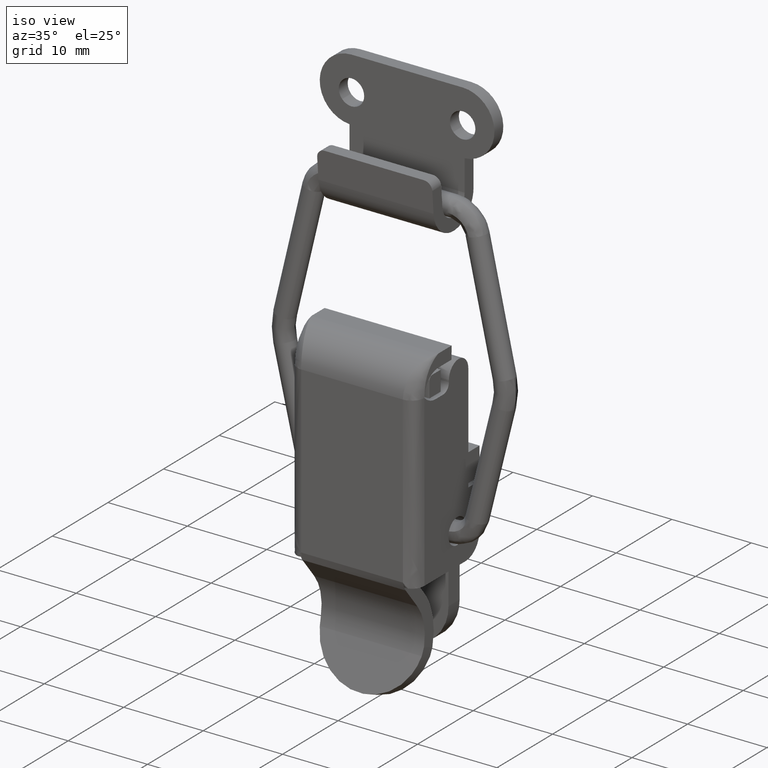
[diagram: clean part render]
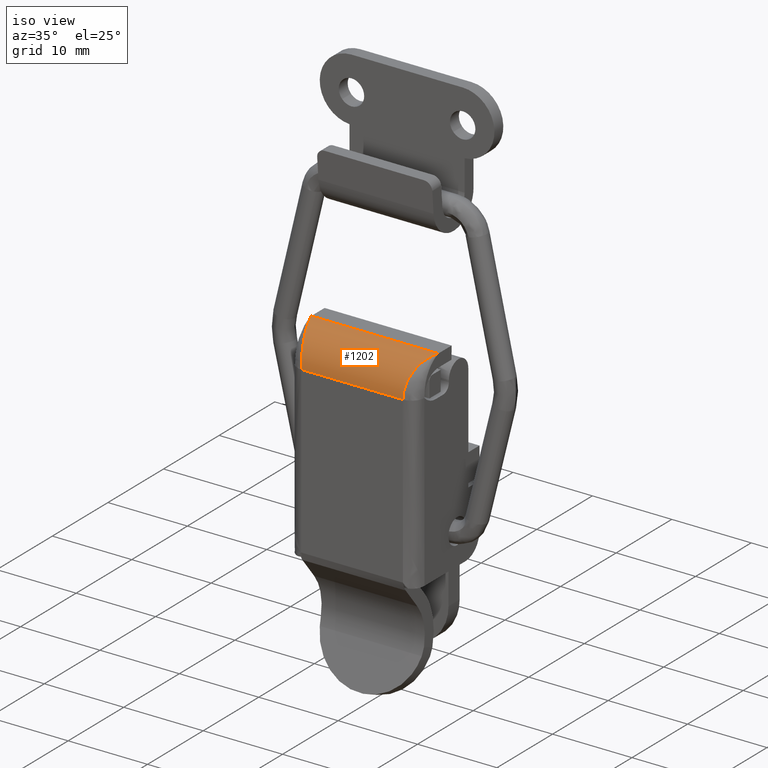
[diagram: same view with one face highlighted and labeled with its STEP entity id]
A machine part, iso view. The second image highlights one B-rep face of the part: STEP entity #1202.
In plain terms, the highlighted face is a freeform B-spline surface patch.
Its self-contained STEP definition (entity closure, byte-faithful):
#667=CARTESIAN_POINT('',(7.999999999995459,-3.400000000000000,21.500000000000000));
#668=VERTEX_POINT('',#667);
#681=CARTESIAN_POINT('',(6.399999999995410,-7.500000000000090,17.399999999999999));
#682=VERTEX_POINT('',#681);
#683=CARTESIAN_POINT('',(6.399999999995410,-7.500000000000090,17.399999999999999));
#684=CARTESIAN_POINT('',(6.400817941904256,-7.498369870405178,17.487741123472290));
#685=CARTESIAN_POINT('',(6.402472976103958,-7.495071445155924,17.665277644470919));
#686=CARTESIAN_POINT('',(6.415469538153947,-7.467982212186078,17.933362154028590));
#687=CARTESIAN_POINT('',(6.436098884842517,-7.423470062389118,18.204956931007729));
#688=CARTESIAN_POINT('',(6.465166851093370,-7.358950102363911,18.478646325323830));
#689=CARTESIAN_POINT('',(6.502448589030452,-7.273991646408432,18.752867533384268));
#690=CARTESIAN_POINT('',(6.548006025915212,-7.167702577982291,19.025911711262381));
#691=CARTESIAN_POINT('',(6.601819723528042,-7.039480140915533,19.295928670272609));
#692=CARTESIAN_POINT('',(6.663900364781713,-6.888830542924623,19.560931203479370));
#693=CARTESIAN_POINT('',(6.734221852200754,-6.715438154342415,19.818811876458032));
#694=CARTESIAN_POINT('',(6.812878815730867,-6.519202735964103,20.067324660703591));
#695=CARTESIAN_POINT('',(6.899553717895350,-6.300020043259929,20.304348185544200));
#696=CARTESIAN_POINT('',(6.999401435970504,-6.049119517864815,20.535792064701059));
#697=CARTESIAN_POINT('',(7.116172219521545,-5.754636205548438,20.764177961131370));
#698=CARTESIAN_POINT('',(7.253183006062156,-5.402385223351017,20.986681771796949));
#699=CARTESIAN_POINT('',(7.410569319942255,-4.988902406583774,21.190050332300380));
#700=CARTESIAN_POINT('',(7.588366186915706,-4.512917163834680,21.356936243170480));
#701=CARTESIAN_POINT('',(7.786338990857765,-3.976170195974098,21.476152211762781));
#702=CARTESIAN_POINT('',(7.926920983262573,-3.597068953124590,21.491843280518349));
#703=CARTESIAN_POINT('',(7.999999999995459,-3.400000000000000,21.500000000000000));
#704=B_SPLINE_CURVE_WITH_KNOTS('',3,(#683,#684,#685,#686,#687,#688,#689,#690,#691,#692,#693,#694,#695,#696,#697,#698,#699,#700,#701,#702,#703),.UNSPECIFIED.,.F.,.U.,(4,1,1,1,1,1,1,1,1,1,1,1,1,1,1,1,1,1,4),(0.0,0.039457000227844,0.079837803213298,0.121177865213391,0.163510230444368,0.206865672501022,0.251272836327311,0.296758378157441,0.343347101494275,0.391062087739001,0.439924820535822,0.489955303256602,0.541255746396446,0.599726277657125,0.665381496670594,0.738231075283894,0.818281462756797,0.905536891336275,1.0),.UNSPECIFIED.);
#705=EDGE_CURVE('',#682,#668,#704,.T.);
#790=CARTESIAN_POINT('',(-8.000000000004560,-3.400000000000000,21.500000000000000));
#791=VERTEX_POINT('',#790);
#792=CARTESIAN_POINT('',(-6.400000000004620,-7.500000000000090,17.399999999999999));
#793=VERTEX_POINT('',#792);
#794=CARTESIAN_POINT('',(-8.000000000004560,-3.400000000000000,21.500000000000000));
#795=CARTESIAN_POINT('',(-7.962692002445950,-3.500366552140641,21.497878922846859));
#796=CARTESIAN_POINT('',(-7.889473520453919,-3.697340045018732,21.493716221562352));
#797=CARTESIAN_POINT('',(-7.782877693118105,-3.986040633115197,21.460993526888029));
#798=CARTESIAN_POINT('',(-7.681322521951546,-4.261041051541691,21.411745425111931));
#799=CARTESIAN_POINT('',(-7.584880507796839,-4.521488379212086,21.346542030874719));
#800=CARTESIAN_POINT('',(-7.493533060811885,-4.766781326857156,21.268217465775979));
#801=CARTESIAN_POINT('',(-7.407284507590556,-4.996581765585521,21.178926704259940));
#802=CARTESIAN_POINT('',(-7.326133306991737,-5.210773535309698,21.080862371803239));
#803=CARTESIAN_POINT('',(-7.250079423657398,-5.409434968176528,20.976056082363339));
#804=CARTESIAN_POINT('',(-7.179121909771957,-5.592809012982780,20.866415264339960));
#805=CARTESIAN_POINT('',(-7.113261364969709,-5.761275686558754,20.753705874129562));
#806=CARTESIAN_POINT('',(-7.052492797960681,-5.915325472957798,20.639552924079030));
#807=CARTESIAN_POINT('',(-6.996829508273423,-6.055536271283579,20.525439862207548));
#808=CARTESIAN_POINT('',(-6.946221706103973,-6.182546642181571,20.412712181736641));
#809=CARTESIAN_POINT('',(-6.859427457966731,-6.401497215062462,20.202118555573641));
#810=CARTESIAN_POINT('',(-6.745678776211674,-6.688080887904436,19.871830653542609));
#811=CARTESIAN_POINT('',(-6.620078082271268,-6.996388521358269,19.394781109927830));
#812=CARTESIAN_POINT('',(-6.522127183210611,-7.229259702709276,18.898298576726710));
#813=CARTESIAN_POINT('',(-6.452554504345570,-7.387968264955942,18.394652335802760));
#814=CARTESIAN_POINT('',(-6.408521720948374,-7.482940641346525,17.894435292847191));
#815=CARTESIAN_POINT('',(-6.402799719183300,-7.494395332355269,17.562441363978341));
#816=CARTESIAN_POINT('',(-6.400000000004620,-7.500000000000090,17.399999999999999));
#817=B_SPLINE_CURVE_WITH_KNOTS('',3,(#794,#795,#796,#797,#798,#799,#800,#801,#802,#803,#804,#805,#806,#807,#808,#809,#810,#811,#812,#813,#814,#815,#816),.UNSPECIFIED.,.F.,.U.,(4,1,1,1,1,1,1,1,1,1,1,1,1,1,1,1,1,1,1,1,4),(0.0,0.048155483047067,0.094507119102018,0.139055334416934,0.181800620876770,0.222743547075383,0.261884771932107,0.299225061579376,0.334765310509058,0.368506568330238,0.400450074018049,0.430597300308233,0.458950012052622,0.485510344126143,0.510280907256767,0.601052974151759,0.687964356441199,0.771149835015808,0.850763189082961,0.926979896277808,1.0),.UNSPECIFIED.);
#818=EDGE_CURVE('',#791,#793,#817,.T.);
#1174=CARTESIAN_POINT('',(-8.400000000004560,-7.499843884563196,17.364221204456669));
#1175=CARTESIAN_POINT('',(8.409999999995460,-7.499843884563196,17.364221204456669));
#1176=CARTESIAN_POINT('',(-8.400000000004562,-7.538211945386232,21.760765502248184));
#1177=CARTESIAN_POINT('',(8.409999999995460,-7.538211945386232,21.760765502248184));
#1178=CARTESIAN_POINT('',(-8.400000000004560,-3.149700987907183,21.492352673529648));
#1179=CARTESIAN_POINT('',(8.409999999995460,-3.149700987907183,21.492352673529648));
#1187=(BOUNDED_SURFACE()B_SPLINE_SURFACE(1,2,((#1174,#1176,#1178),(#1175,#1177,#1179)),.UNSPECIFIED.,.F.,.F.,.U.)B_SPLINE_SURFACE_WITH_KNOTS((2,2),(3,3),(0.0,16.810000000000020),(0.0,7.130922949359298),.UNSPECIFIED.)GEOMETRIC_REPRESENTATION_ITEM()RATIONAL_B_SPLINE_SURFACE(((1.0,0.681998360062499,1.0),(1.0,0.681998360062499,1.0)))REPRESENTATION_ITEM('')SURFACE());
#1188=CARTESIAN_POINT('',(-8.000000000004560,-3.400000000000000,21.500000000000000));
#1189=CARTESIAN_POINT('',(7.999999999995459,-3.400000000000000,21.500000000000000));
#1190=QUASI_UNIFORM_CURVE('',1,(#1188,#1189),.UNSPECIFIED.,.F.,.U.);
#1191=EDGE_CURVE('',#791,#668,#1190,.T.);
#1192=ORIENTED_EDGE('',*,*,#1191,.F.);
#1193=ORIENTED_EDGE('',*,*,#818,.T.);
#1194=CARTESIAN_POINT('',(-6.400000000004620,-7.500000000000090,17.399999999999999));
#1195=CARTESIAN_POINT('',(6.399999999995410,-7.500000000000090,17.399999999999999));
#1196=QUASI_UNIFORM_CURVE('',1,(#1194,#1195),.UNSPECIFIED.,.F.,.U.);
#1197=EDGE_CURVE('',#793,#682,#1196,.T.);
#1198=ORIENTED_EDGE('',*,*,#1197,.T.);
#1199=ORIENTED_EDGE('',*,*,#705,.T.);
#1200=EDGE_LOOP('',(#1192,#1193,#1198,#1199));
#1201=FACE_OUTER_BOUND('',#1200,.T.);
#1202=ADVANCED_FACE('',(#1201),#1187,.T.);